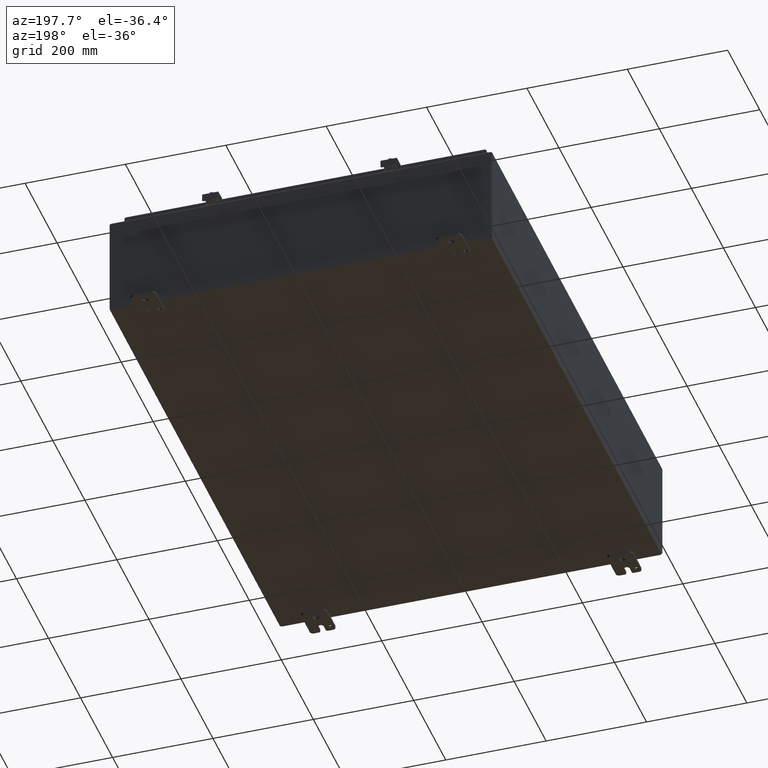
[diagram: clean part render]
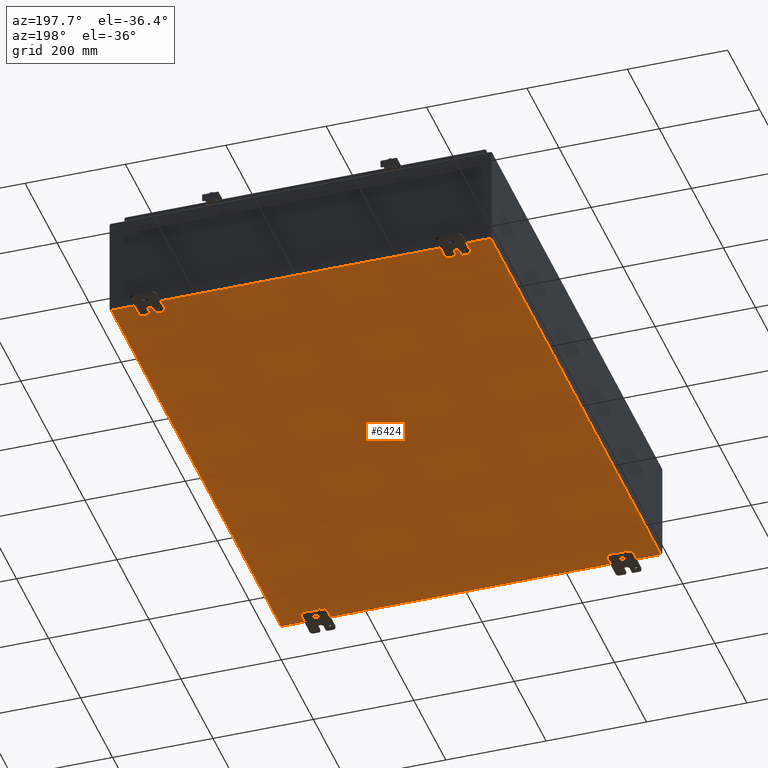
[diagram: same view with one face highlighted and labeled with its STEP entity id]
A machine part, auxiliary view. The second image highlights one B-rep face of the part: STEP entity #6424.
In plain terms, the highlighted planar face has unit normal (0, 0, 1).
Its self-contained STEP definition (entity closure, byte-faithful):
#128 = AXIS2_PLACEMENT_3D ( 'NONE', #42103, #40457, #42301 ) ;
#211 = AXIS2_PLACEMENT_3D ( 'NONE', #44488, #15847, #49394 ) ;
#239 = CARTESIAN_POINT ( 'NONE',  ( -11.51562529999998000, -19.68999899186647800, 0.0000000000000000000 ) ) ;
#617 = LINE ( 'NONE', #14365, #59246 ) ;
#690 = CIRCLE ( 'NONE', #8524, 0.07000000000000007600 ) ;
#926 = EDGE_CURVE ( 'NONE', #27794, #26056, #39203, .T. ) ;
#1309 = AXIS2_PLACEMENT_3D ( 'NONE', #32910, #4462, #37727 ) ;
#1923 = CARTESIAN_POINT ( 'NONE',  ( 14.89475000000000200, 20.88276683932436100, 0.0000000000000000000 ) ) ;
#1992 = DIRECTION ( 'NONE',  ( 1.000000000000000000, 0.0000000000000000000, 0.0000000000000000000 ) ) ;
#2391 = EDGE_CURVE ( 'NONE', #38119, #17900, #12758, .T. ) ;
#2554 = AXIS2_PLACEMENT_3D ( 'NONE', #12032, #45428, #16793 ) ;
#2591 = ORIENTED_EDGE ( 'NONE', *, *, #2391, .T. ) ;
#2736 = EDGE_CURVE ( 'NONE', #26205, #33843, #15434, .T. ) ;
#3113 = DIRECTION ( 'NONE',  ( 0.0000000000000000000, 0.0000000000000000000, 1.000000000000000000 ) ) ;
#3213 = ORIENTED_EDGE ( 'NONE', *, *, #3393, .T. ) ;
#3393 = EDGE_CURVE ( 'NONE', #32088, #27602, #30990, .T. ) ;
#3531 = LINE ( 'NONE', #59216, #25735 ) ;
#4462 = DIRECTION ( 'NONE',  ( 0.0000000000000000000, 0.0000000000000000000, 1.000000000000000000 ) ) ;
#4562 = DIRECTION ( 'NONE',  ( 0.0000000000000000000, 0.0000000000000000000, 1.000000000000000000 ) ) ;
#4574 = CARTESIAN_POINT ( 'NONE',  ( 11.51562529999999500, -19.68999899186647400, 0.0000000000000000000 ) ) ;
#4653 = VERTEX_POINT ( 'NONE', #58802 ) ;
#4666 = ORIENTED_EDGE ( 'NONE', *, *, #43387, .T. ) ;
#4711 = DIRECTION ( 'NONE',  ( 1.000000000000000000, 0.0000000000000000000, 0.0000000000000000000 ) ) ;
#4874 = CIRCLE ( 'NONE', #9232, 0.06000000000000099700 ) ;
#4909 = ORIENTED_EDGE ( 'NONE', *, *, #42933, .T. ) ;
#5029 = CIRCLE ( 'NONE', #34673, 0.06000000000000099700 ) ;
#5451 = CARTESIAN_POINT ( 'NONE',  ( -12.54437529999997900, 19.68999899186647800, 0.0000000000000000000 ) ) ;
#5521 = FACE_BOUND ( 'NONE', #51362, .T. ) ;
#5673 = CIRCLE ( 'NONE', #34553, 0.06000000000000099700 ) ;
#5931 = EDGE_LOOP ( 'NONE', ( #44299, #50729 ) ) ;
#6004 = EDGE_CURVE ( 'NONE', #55685, #9039, #617, .T. ) ;
#6424 = ADVANCED_FACE ( 'NONE', ( #8483, #35253, #32262, #19579, #45040, #7012, #56339, #43512, #30762, #18105, #5521, #54882, #41983 ), #17712, .F. ) ;
#6732 = ORIENTED_EDGE ( 'NONE', *, *, #26517, .T. ) ;
#7012 = FACE_BOUND ( 'NONE', #14826, .T. ) ;
#7304 = CARTESIAN_POINT ( 'NONE',  ( -12.42437529999997800, 19.68999899186647800, 0.0000000000000000000 ) ) ;
#7564 = DIRECTION ( 'NONE',  ( 0.0000000000000000000, 0.0000000000000000000, 1.000000000000000000 ) ) ;
#7850 = EDGE_CURVE ( 'NONE', #8580, #28354, #58143, .T. ) ;
#7889 = CARTESIAN_POINT ( 'NONE',  ( 11.51562529999999500, 19.68999899186647400, 0.0000000000000000000 ) ) ;
#7954 = DIRECTION ( 'NONE',  ( 1.000000000000000000, 0.0000000000000000000, 0.0000000000000000000 ) ) ;
#7970 = CARTESIAN_POINT ( 'NONE',  ( 12.42437529999999100, 19.68999899186647400, 0.0000000000000000000 ) ) ;
#7978 = ORIENTED_EDGE ( 'NONE', *, *, #15693, .T. ) ;
#8022 = DIRECTION ( 'NONE',  ( 0.0000000000000000000, 0.0000000000000000000, 1.000000000000000000 ) ) ;
#8032 = CARTESIAN_POINT ( 'NONE',  ( 12.48437529999999100, 19.68999899186647400, 0.0000000000000000000 ) ) ;
#8386 = DIRECTION ( 'NONE',  ( 1.000000000000000000, 0.0000000000000000000, 0.0000000000000000000 ) ) ;
#8462 = DIRECTION ( 'NONE',  ( 0.0000000000000000000, 0.0000000000000000000, 1.000000000000000000 ) ) ;
#8483 = FACE_OUTER_BOUND ( 'NONE', #44674, .T. ) ;
#8524 = AXIS2_PLACEMENT_3D ( 'NONE', #9797, #43120, #14544 ) ;
#8531 = CARTESIAN_POINT ( 'NONE',  ( -14.93789192111541000, -20.93789192111542600, 0.0000000000000000000 ) ) ;
#8580 = VERTEX_POINT ( 'NONE', #7304 ) ;
#9039 = VERTEX_POINT ( 'NONE', #17707 ) ;
#9159 = VERTEX_POINT ( 'NONE', #24103 ) ;
#9232 = AXIS2_PLACEMENT_3D ( 'NONE', #33008, #4562, #37821 ) ;
#9241 = AXIS2_PLACEMENT_3D ( 'NONE', #22546, #56148, #27352 ) ;
#9273 = CARTESIAN_POINT ( 'NONE',  ( 11.78125029999726300, 20.37549899187228100, 0.0000000000000000000 ) ) ;
#9302 = ORIENTED_EDGE ( 'NONE', *, *, #48660, .T. ) ;
#9312 = DIRECTION ( 'NONE',  ( 1.000000000000000000, 0.0000000000000000000, 0.0000000000000000000 ) ) ;
#9447 = CARTESIAN_POINT ( 'NONE',  ( -12.54437529999998300, -19.68999899186647800, 0.0000000000000000000 ) ) ;
#9640 = ORIENTED_EDGE ( 'NONE', *, *, #13805, .T. ) ;
#9715 = AXIS2_PLACEMENT_3D ( 'NONE', #7889, #41149, #12635 ) ;
#9797 = CARTESIAN_POINT ( 'NONE',  ( -14.93789192111543500, 20.93789192111543700, 0.0000000000000000000 ) ) ;
#10377 = ORIENTED_EDGE ( 'NONE', *, *, #41538, .T. ) ;
#10389 = ORIENTED_EDGE ( 'NONE', *, *, #34206, .T. ) ;
#10595 = CIRCLE ( 'NONE', #2554, 0.06000000000000099700 ) ;
#10665 = ORIENTED_EDGE ( 'NONE', *, *, #44033, .T. ) ;
#11360 = AXIS2_PLACEMENT_3D ( 'NONE', #239, #33162, #4711 ) ;
#12032 = CARTESIAN_POINT ( 'NONE',  ( 12.48437529999999100, 19.68999899186647400, 0.0000000000000000000 ) ) ;
#12186 = VERTEX_POINT ( 'NONE', #42942 ) ;
#12635 = DIRECTION ( 'NONE',  ( 1.000000000000000000, 0.0000000000000000000, 0.0000000000000000000 ) ) ;
#12758 = CIRCLE ( 'NONE', #52884, 0.06000000000000099700 ) ;
#12872 = CIRCLE ( 'NONE', #37017, 0.07000000000000007600 ) ;
#13451 = CARTESIAN_POINT ( 'NONE',  ( 14.88276683932436000, -20.89475000000000200, 0.0000000000000000000 ) ) ;
#13665 = CARTESIAN_POINT ( 'NONE',  ( 11.84125029999726300, 20.37549899187228100, 0.0000000000000000000 ) ) ;
#13805 = EDGE_CURVE ( 'NONE', #50922, #33155, #17586, .T. ) ;
#14303 = DIRECTION ( 'NONE',  ( 0.0000000000000000000, 1.000000000000000000, 0.0000000000000000000 ) ) ;
#14365 = CARTESIAN_POINT ( 'NONE',  ( -14.89474999999999800, -20.88276683932436500, 0.0000000000000000000 ) ) ;
#14522 = EDGE_CURVE ( 'NONE', #58128, #16024, #5673, .T. ) ;
#14544 = DIRECTION ( 'NONE',  ( 1.000000000000000000, 0.0000000000000000000, 0.0000000000000000000 ) ) ;
#14572 = ORIENTED_EDGE ( 'NONE', *, *, #45452, .T. ) ;
#14620 = CARTESIAN_POINT ( 'NONE',  ( -11.90125029999725100, -20.37549899187228400, 0.0000000000000000000 ) ) ;
#14826 = EDGE_LOOP ( 'NONE', ( #21621, #52913 ) ) ;
#14958 = AXIS2_PLACEMENT_3D ( 'NONE', #8032, #8022, #7954 ) ;
#15401 = EDGE_LOOP ( 'NONE', ( #26481, #9640 ) ) ;
#15434 = CIRCLE ( 'NONE', #53693, 0.06000000000000099700 ) ;
#15693 = EDGE_CURVE ( 'NONE', #27602, #32088, #47269, .T. ) ;
#15813 = CARTESIAN_POINT ( 'NONE',  ( -12.48437529999997900, 19.68999899186647800, 0.0000000000000000000 ) ) ;
#15847 = DIRECTION ( 'NONE',  ( 0.0000000000000000000, 0.0000000000000000000, 1.000000000000000000 ) ) ;
#15969 = VECTOR ( 'NONE', #27772, 39.37007874015748100 ) ;
#16024 = VERTEX_POINT ( 'NONE', #50974 ) ;
#16151 = EDGE_CURVE ( 'NONE', #25657, #51084, #18642, .T. ) ;
#16527 = EDGE_CURVE ( 'NONE', #26056, #27794, #25976, .T. ) ;
#16793 = DIRECTION ( 'NONE',  ( 1.000000000000000000, 0.0000000000000000000, 0.0000000000000000000 ) ) ;
#17170 = CIRCLE ( 'NONE', #48253, 0.06000000000000099700 ) ;
#17288 = ORIENTED_EDGE ( 'NONE', *, *, #6004, .T. ) ;
#17586 = CIRCLE ( 'NONE', #20104, 0.06000000000000099700 ) ;
#17629 = CIRCLE ( 'NONE', #45583, 0.06000000000000099700 ) ;
#17640 = ORIENTED_EDGE ( 'NONE', *, *, #51364, .T. ) ;
#17707 = CARTESIAN_POINT ( 'NONE',  ( -14.89475000000001300, 20.88276683932438600, -2.475737244258238600E-016 ) ) ;
#17712 = PLANE ( 'NONE',  #128 ) ;
#17900 = VERTEX_POINT ( 'NONE', #9273 ) ;
#17963 = EDGE_CURVE ( 'NONE', #19900, #55685, #55771, .T. ) ;
#18105 = FACE_BOUND ( 'NONE', #47729, .T. ) ;
#18429 = DIRECTION ( 'NONE',  ( 1.000000000000000000, 0.0000000000000000000, 0.0000000000000000000 ) ) ;
#18530 = EDGE_CURVE ( 'NONE', #57036, #36661, #3531, .T. ) ;
#18642 = CIRCLE ( 'NONE', #38327, 0.06000000000000099700 ) ;
#18691 = DIRECTION ( 'NONE',  ( 0.0000000000000000000, 0.0000000000000000000, 1.000000000000000000 ) ) ;
#19200 = CIRCLE ( 'NONE', #48551, 0.06000000000000099700 ) ;
#19301 = CARTESIAN_POINT ( 'NONE',  ( -12.42437529999998000, -19.68999899186647800, 0.0000000000000000000 ) ) ;
#19579 = FACE_BOUND ( 'NONE', #42394, .T. ) ;
#19608 = CIRCLE ( 'NONE', #50681, 0.06000000000000099700 ) ;
#19900 = VERTEX_POINT ( 'NONE', #55339 ) ;
#19925 = CARTESIAN_POINT ( 'NONE',  ( -11.51562529999998000, -19.68999899186647800, 0.0000000000000000000 ) ) ;
#20104 = AXIS2_PLACEMENT_3D ( 'NONE', #56181, #56266, #56392 ) ;
#20587 = DIRECTION ( 'NONE',  ( 1.000000000000000000, 0.0000000000000000000, 0.0000000000000000000 ) ) ;
#20855 = VERTEX_POINT ( 'NONE', #35913 ) ;
#20908 = ORIENTED_EDGE ( 'NONE', *, *, #7850, .T. ) ;
#21062 = ORIENTED_EDGE ( 'NONE', *, *, #56970, .T. ) ;
#21457 = CARTESIAN_POINT ( 'NONE',  ( -11.57562529999998300, 19.68999899186647800, 0.0000000000000000000 ) ) ;
#21621 = ORIENTED_EDGE ( 'NONE', *, *, #16527, .T. ) ;
#22376 = CIRCLE ( 'NONE', #40705, 0.06000000000000099700 ) ;
#22546 = CARTESIAN_POINT ( 'NONE',  ( 11.51562529999999500, -19.68999899186647400, 0.0000000000000000000 ) ) ;
#22687 = CARTESIAN_POINT ( 'NONE',  ( 11.84125029999726100, -20.37549899187228100, 0.0000000000000000000 ) ) ;
#24103 = CARTESIAN_POINT ( 'NONE',  ( -11.78125029999724800, 20.37549899187228400, 0.0000000000000000000 ) ) ;
#24236 = AXIS2_PLACEMENT_3D ( 'NONE', #41564, #41552, #41413 ) ;
#24724 = CARTESIAN_POINT ( 'NONE',  ( -14.89474999999999500, -20.88276683932436100, -2.475737244258238600E-016 ) ) ;
#24730 = DIRECTION ( 'NONE',  ( 1.000000000000000000, 0.0000000000000000000, 0.0000000000000000000 ) ) ;
#24923 = CARTESIAN_POINT ( 'NONE',  ( -11.51562529999998000, 19.68999899186647800, 0.0000000000000000000 ) ) ;
#25428 = DIRECTION ( 'NONE',  ( 0.0000000000000000000, 0.0000000000000000000, 1.000000000000000000 ) ) ;
#25576 = ORIENTED_EDGE ( 'NONE', *, *, #16151, .T. ) ;
#25657 = VERTEX_POINT ( 'NONE', #56964 ) ;
#25735 = VECTOR ( 'NONE', #59405, 39.37007874015748100 ) ;
#25831 = CARTESIAN_POINT ( 'NONE',  ( 11.90125029999726200, -20.37549899187228100, 0.0000000000000000000 ) ) ;
#25976 = CIRCLE ( 'NONE', #35931, 0.06000000000000099700 ) ;
#25985 = VERTEX_POINT ( 'NONE', #33126 ) ;
#26056 = VERTEX_POINT ( 'NONE', #29958 ) ;
#26192 = DIRECTION ( 'NONE',  ( 0.0000000000000000000, 0.0000000000000000000, 1.000000000000000000 ) ) ;
#26205 = VERTEX_POINT ( 'NONE', #21457 ) ;
#26363 = ORIENTED_EDGE ( 'NONE', *, *, #49867, .T. ) ;
#26408 = AXIS2_PLACEMENT_3D ( 'NONE', #19925, #53596, #24730 ) ;
#26481 = ORIENTED_EDGE ( 'NONE', *, *, #48659, .T. ) ;
#26517 = EDGE_CURVE ( 'NONE', #38646, #40283, #56686, .T. ) ;
#26880 = DIRECTION ( 'NONE',  ( 1.000000000000000000, 0.0000000000000000000, 0.0000000000000000000 ) ) ;
#27352 = DIRECTION ( 'NONE',  ( 1.000000000000000000, 0.0000000000000000000, 0.0000000000000000000 ) ) ;
#27472 = DIRECTION ( 'NONE',  ( 1.000000000000000000, 0.0000000000000000000, 0.0000000000000000000 ) ) ;
#27602 = VERTEX_POINT ( 'NONE', #55209 ) ;
#27772 = DIRECTION ( 'NONE',  ( -1.000000000000000000, 0.0000000000000000000, 0.0000000000000000000 ) ) ;
#27794 = VERTEX_POINT ( 'NONE', #14620 ) ;
#28354 = VERTEX_POINT ( 'NONE', #5451 ) ;
#28826 = CARTESIAN_POINT ( 'NONE',  ( -11.90125029999725100, 20.37549899187228400, 0.0000000000000000000 ) ) ;
#29958 = CARTESIAN_POINT ( 'NONE',  ( -11.78125029999724800, -20.37549899187228400, 0.0000000000000000000 ) ) ;
#30566 = AXIS2_PLACEMENT_3D ( 'NONE', #38808, #38797, #38575 ) ;
#30740 = CARTESIAN_POINT ( 'NONE',  ( 11.84125029999726300, 20.37549899187228100, 0.0000000000000000000 ) ) ;
#30762 = FACE_BOUND ( 'NONE', #47141, .T. ) ;
#30990 = CIRCLE ( 'NONE', #24236, 0.06000000000000099700 ) ;
#31600 = CIRCLE ( 'NONE', #11360, 0.06000000000000099700 ) ;
#31804 = CIRCLE ( 'NONE', #1309, 0.06000000000000099700 ) ;
#32088 = VERTEX_POINT ( 'NONE', #58429 ) ;
#32262 = FACE_BOUND ( 'NONE', #5931, .T. ) ;
#32910 = CARTESIAN_POINT ( 'NONE',  ( -11.84125029999724900, 20.37549899187228400, 0.0000000000000000000 ) ) ;
#33008 = CARTESIAN_POINT ( 'NONE',  ( -12.48437529999998000, -19.68999899186647800, 0.0000000000000000000 ) ) ;
#33126 = CARTESIAN_POINT ( 'NONE',  ( 14.88276683932436100, -20.89475000000000200, -2.475737244258238600E-016 ) ) ;
#33155 = VERTEX_POINT ( 'NONE', #19301 ) ;
#33162 = DIRECTION ( 'NONE',  ( 0.0000000000000000000, 0.0000000000000000000, 1.000000000000000000 ) ) ;
#33230 = EDGE_LOOP ( 'NONE', ( #7978, #3213 ) ) ;
#33433 = ORIENTED_EDGE ( 'NONE', *, *, #38330, .T. ) ;
#33681 = ORIENTED_EDGE ( 'NONE', *, *, #2736, .T. ) ;
#33843 = VERTEX_POINT ( 'NONE', #55301 ) ;
#34206 = EDGE_CURVE ( 'NONE', #42232, #25985, #12872, .T. ) ;
#34553 = AXIS2_PLACEMENT_3D ( 'NONE', #45212, #45131, #45002 ) ;
#34673 = AXIS2_PLACEMENT_3D ( 'NONE', #55010, #26192, #59672 ) ;
#35253 = FACE_BOUND ( 'NONE', #33230, .T. ) ;
#35849 = EDGE_CURVE ( 'NONE', #20855, #51458, #17629, .T. ) ;
#35913 = CARTESIAN_POINT ( 'NONE',  ( 11.45562529999999200, -19.68999899186647400, 0.0000000000000000000 ) ) ;
#35931 = AXIS2_PLACEMENT_3D ( 'NONE', #53803, #53736, #53729 ) ;
#36002 = CARTESIAN_POINT ( 'NONE',  ( 12.48437529999999100, -19.68999899186647400, 0.0000000000000000000 ) ) ;
#36022 = CARTESIAN_POINT ( 'NONE',  ( 14.93789192111541900, -20.93789192111542300, 0.0000000000000000000 ) ) ;
#36125 = ORIENTED_EDGE ( 'NONE', *, *, #18530, .T. ) ;
#36149 = DIRECTION ( 'NONE',  ( 0.0000000000000000000, 0.0000000000000000000, 1.000000000000000000 ) ) ;
#36338 = DIRECTION ( 'NONE',  ( 1.000000000000000000, 0.0000000000000000000, 0.0000000000000000000 ) ) ;
#36661 = VERTEX_POINT ( 'NONE', #48140 ) ;
#36942 = VERTEX_POINT ( 'NONE', #50021 ) ;
#37017 = AXIS2_PLACEMENT_3D ( 'NONE', #36022, #7564, #40827 ) ;
#37727 = DIRECTION ( 'NONE',  ( 1.000000000000000000, 0.0000000000000000000, 0.0000000000000000000 ) ) ;
#37821 = DIRECTION ( 'NONE',  ( 1.000000000000000000, 0.0000000000000000000, 0.0000000000000000000 ) ) ;
#37837 = DIRECTION ( 'NONE',  ( 0.0000000000000000000, 0.0000000000000000000, 1.000000000000000000 ) ) ;
#38119 = VERTEX_POINT ( 'NONE', #59186 ) ;
#38327 = AXIS2_PLACEMENT_3D ( 'NONE', #44508, #38826, #45843 ) ;
#38330 = EDGE_CURVE ( 'NONE', #16024, #58128, #19608, .T. ) ;
#38501 = EDGE_LOOP ( 'NONE', ( #6732, #10377 ) ) ;
#38575 = DIRECTION ( 'NONE',  ( 1.000000000000000000, 0.0000000000000000000, 0.0000000000000000000 ) ) ;
#38646 = VERTEX_POINT ( 'NONE', #47172 ) ;
#38750 = VERTEX_POINT ( 'NONE', #28826 ) ;
#38797 = DIRECTION ( 'NONE',  ( 0.0000000000000000000, 0.0000000000000000000, 1.000000000000000000 ) ) ;
#38808 = CARTESIAN_POINT ( 'NONE',  ( -12.48437529999997900, 19.68999899186647800, 0.0000000000000000000 ) ) ;
#38826 = DIRECTION ( 'NONE',  ( 0.0000000000000000000, 0.0000000000000000000, 1.000000000000000000 ) ) ;
#39203 = CIRCLE ( 'NONE', #58736, 0.06000000000000099700 ) ;
#39790 = CARTESIAN_POINT ( 'NONE',  ( -14.88276683932437500, 20.89475000000000900, 2.475737244258238600E-016 ) ) ;
#40283 = VERTEX_POINT ( 'NONE', #7970 ) ;
#40287 = DIRECTION ( 'NONE',  ( 1.000000000000000000, 0.0000000000000000000, 0.0000000000000000000 ) ) ;
#40362 = DIRECTION ( 'NONE',  ( 0.0000000000000000000, 0.0000000000000000000, 1.000000000000000000 ) ) ;
#40428 = CARTESIAN_POINT ( 'NONE',  ( -11.84125029999724900, -20.37549899187228400, 0.0000000000000000000 ) ) ;
#40457 = DIRECTION ( 'NONE',  ( 0.0000000000000000000, 0.0000000000000000000, 1.000000000000000000 ) ) ;
#40470 = CARTESIAN_POINT ( 'NONE',  ( 11.45562529999999200, 19.68999899186647400, 0.0000000000000000000 ) ) ;
#40705 = AXIS2_PLACEMENT_3D ( 'NONE', #13665, #47118, #18429 ) ;
#40727 = ORIENTED_EDGE ( 'NONE', *, *, #55258, .T. ) ;
#40827 = DIRECTION ( 'NONE',  ( 1.000000000000000000, 0.0000000000000000000, 0.0000000000000000000 ) ) ;
#40898 = EDGE_CURVE ( 'NONE', #9159, #38750, #5029, .T. ) ;
#41149 = DIRECTION ( 'NONE',  ( 0.0000000000000000000, 0.0000000000000000000, 1.000000000000000000 ) ) ;
#41326 = LINE ( 'NONE', #13451, #15969 ) ;
#41413 = DIRECTION ( 'NONE',  ( 1.000000000000000000, 0.0000000000000000000, 0.0000000000000000000 ) ) ;
#41538 = EDGE_CURVE ( 'NONE', #40283, #38646, #10595, .T. ) ;
#41552 = DIRECTION ( 'NONE',  ( 0.0000000000000000000, 0.0000000000000000000, 1.000000000000000000 ) ) ;
#41564 = CARTESIAN_POINT ( 'NONE',  ( 12.48437529999999100, -19.68999899186647400, 0.0000000000000000000 ) ) ;
#41705 = EDGE_CURVE ( 'NONE', #17900, #38119, #22376, .T. ) ;
#41983 = FACE_BOUND ( 'NONE', #38501, .T. ) ;
#42103 = CARTESIAN_POINT ( 'NONE',  ( -1.398706000000000100E-015, 4.196119000000001000E-015, 0.0000000000000000000 ) ) ;
#42232 = VERTEX_POINT ( 'NONE', #51529 ) ;
#42301 = DIRECTION ( 'NONE',  ( 1.000000000000000000, 0.0000000000000000000, 0.0000000000000000000 ) ) ;
#42316 = ORIENTED_EDGE ( 'NONE', *, *, #17963, .T. ) ;
#42394 = EDGE_LOOP ( 'NONE', ( #47226, #33433 ) ) ;
#42890 = VECTOR ( 'NONE', #45075, 39.37007874015748100 ) ;
#42933 = EDGE_CURVE ( 'NONE', #33843, #26205, #19200, .T. ) ;
#42942 = CARTESIAN_POINT ( 'NONE',  ( -11.57562529999998300, -19.68999899186647800, 0.0000000000000000000 ) ) ;
#43120 = DIRECTION ( 'NONE',  ( 0.0000000000000000000, 0.0000000000000000000, 1.000000000000000000 ) ) ;
#43387 = EDGE_CURVE ( 'NONE', #51084, #25657, #49129, .T. ) ;
#43512 = FACE_BOUND ( 'NONE', #46203, .T. ) ;
#44033 = EDGE_CURVE ( 'NONE', #12186, #4653, #31600, .T. ) ;
#44299 = ORIENTED_EDGE ( 'NONE', *, *, #54308, .T. ) ;
#44488 = CARTESIAN_POINT ( 'NONE',  ( 14.93789192111541400, 20.93789192111542600, 0.0000000000000000000 ) ) ;
#44508 = CARTESIAN_POINT ( 'NONE',  ( 11.51562529999999500, 19.68999899186647400, 0.0000000000000000000 ) ) ;
#44674 = EDGE_LOOP ( 'NONE', ( #36125, #14572, #40727, #10389, #9302, #42316, #17288, #46115 ) ) ;
#45002 = DIRECTION ( 'NONE',  ( 1.000000000000000000, 0.0000000000000000000, 0.0000000000000000000 ) ) ;
#45040 = FACE_BOUND ( 'NONE', #45164, .T. ) ;
#45075 = DIRECTION ( 'NONE',  ( 0.0000000000000000000, -1.000000000000000000, 0.0000000000000000000 ) ) ;
#45131 = DIRECTION ( 'NONE',  ( 0.0000000000000000000, 0.0000000000000000000, 1.000000000000000000 ) ) ;
#45164 = EDGE_LOOP ( 'NONE', ( #26363, #10665 ) ) ;
#45212 = CARTESIAN_POINT ( 'NONE',  ( 11.84125029999726100, -20.37549899187228100, 0.0000000000000000000 ) ) ;
#45428 = DIRECTION ( 'NONE',  ( 0.0000000000000000000, 0.0000000000000000000, 1.000000000000000000 ) ) ;
#45452 = EDGE_CURVE ( 'NONE', #36661, #36942, #45569, .T. ) ;
#45569 = CIRCLE ( 'NONE', #211, 0.07000000000000007600 ) ;
#45583 = AXIS2_PLACEMENT_3D ( 'NONE', #4574, #37837, #9312 ) ;
#45843 = DIRECTION ( 'NONE',  ( 1.000000000000000000, 0.0000000000000000000, 0.0000000000000000000 ) ) ;
#46115 = ORIENTED_EDGE ( 'NONE', *, *, #55531, .T. ) ;
#46203 = EDGE_LOOP ( 'NONE', ( #49800, #17640 ) ) ;
#47118 = DIRECTION ( 'NONE',  ( 0.0000000000000000000, 0.0000000000000000000, 1.000000000000000000 ) ) ;
#47141 = EDGE_LOOP ( 'NONE', ( #20908, #21062 ) ) ;
#47172 = CARTESIAN_POINT ( 'NONE',  ( 12.54437529999999300, 19.68999899186647400, 0.0000000000000000000 ) ) ;
#47226 = ORIENTED_EDGE ( 'NONE', *, *, #14522, .T. ) ;
#47269 = CIRCLE ( 'NONE', #61106, 0.06000000000000099700 ) ;
#47402 = CARTESIAN_POINT ( 'NONE',  ( -11.51562529999998000, 19.68999899186647800, 0.0000000000000000000 ) ) ;
#47729 = EDGE_LOOP ( 'NONE', ( #4909, #33681 ) ) ;
#48140 = CARTESIAN_POINT ( 'NONE',  ( 14.88276683932436100, 20.89475000000000900, 2.475737244258238600E-016 ) ) ;
#48195 = EDGE_LOOP ( 'NONE', ( #2591, #49449 ) ) ;
#48253 = AXIS2_PLACEMENT_3D ( 'NONE', #15813, #49355, #20587 ) ;
#48551 = AXIS2_PLACEMENT_3D ( 'NONE', #47402, #18691, #52311 ) ;
#48659 = EDGE_CURVE ( 'NONE', #33155, #50922, #4874, .T. ) ;
#48660 = EDGE_CURVE ( 'NONE', #25985, #19900, #41326, .T. ) ;
#49129 = CIRCLE ( 'NONE', #9715, 0.06000000000000099700 ) ;
#49355 = DIRECTION ( 'NONE',  ( 0.0000000000000000000, 0.0000000000000000000, 1.000000000000000000 ) ) ;
#49394 = DIRECTION ( 'NONE',  ( 1.000000000000000000, 0.0000000000000000000, 0.0000000000000000000 ) ) ;
#49449 = ORIENTED_EDGE ( 'NONE', *, *, #41705, .T. ) ;
#49800 = ORIENTED_EDGE ( 'NONE', *, *, #40898, .T. ) ;
#49867 = EDGE_CURVE ( 'NONE', #4653, #12186, #55371, .T. ) ;
#50021 = CARTESIAN_POINT ( 'NONE',  ( 14.89475000000000000, 20.88276683932436100, -2.475737244258238600E-016 ) ) ;
#50681 = AXIS2_PLACEMENT_3D ( 'NONE', #22687, #56274, #27472 ) ;
#50729 = ORIENTED_EDGE ( 'NONE', *, *, #35849, .T. ) ;
#50922 = VERTEX_POINT ( 'NONE', #9447 ) ;
#50974 = CARTESIAN_POINT ( 'NONE',  ( 11.78125029999725900, -20.37549899187228100, 0.0000000000000000000 ) ) ;
#51084 = VERTEX_POINT ( 'NONE', #40470 ) ;
#51362 = EDGE_LOOP ( 'NONE', ( #25576, #4666 ) ) ;
#51364 = EDGE_CURVE ( 'NONE', #38750, #9159, #31804, .T. ) ;
#51426 = AXIS2_PLACEMENT_3D ( 'NONE', #8531, #8462, #8386 ) ;
#51458 = VERTEX_POINT ( 'NONE', #57855 ) ;
#51529 = CARTESIAN_POINT ( 'NONE',  ( 14.89475000000001300, -20.88276683932436500, 2.475737244258238600E-016 ) ) ;
#52311 = DIRECTION ( 'NONE',  ( 1.000000000000000000, 0.0000000000000000000, 0.0000000000000000000 ) ) ;
#52884 = AXIS2_PLACEMENT_3D ( 'NONE', #30740, #3113, #1992 ) ;
#52913 = ORIENTED_EDGE ( 'NONE', *, *, #926, .T. ) ;
#53596 = DIRECTION ( 'NONE',  ( 0.0000000000000000000, 0.0000000000000000000, 1.000000000000000000 ) ) ;
#53693 = AXIS2_PLACEMENT_3D ( 'NONE', #24923, #25428, #26880 ) ;
#53729 = DIRECTION ( 'NONE',  ( 1.000000000000000000, 0.0000000000000000000, 0.0000000000000000000 ) ) ;
#53736 = DIRECTION ( 'NONE',  ( 0.0000000000000000000, 0.0000000000000000000, 1.000000000000000000 ) ) ;
#53803 = CARTESIAN_POINT ( 'NONE',  ( -11.84125029999724900, -20.37549899187228400, 0.0000000000000000000 ) ) ;
#54308 = EDGE_CURVE ( 'NONE', #51458, #20855, #54529, .T. ) ;
#54529 = CIRCLE ( 'NONE', #9241, 0.06000000000000099700 ) ;
#54882 = FACE_BOUND ( 'NONE', #48195, .T. ) ;
#55010 = CARTESIAN_POINT ( 'NONE',  ( -11.84125029999724900, 20.37549899187228400, 0.0000000000000000000 ) ) ;
#55209 = CARTESIAN_POINT ( 'NONE',  ( 12.54437529999999300, -19.68999899186647400, 0.0000000000000000000 ) ) ;
#55258 = EDGE_CURVE ( 'NONE', #36942, #42232, #57233, .T. ) ;
#55301 = CARTESIAN_POINT ( 'NONE',  ( -11.45562529999998000, 19.68999899186647800, 0.0000000000000000000 ) ) ;
#55339 = CARTESIAN_POINT ( 'NONE',  ( -14.88276683932435800, -20.89475000000000200, -2.475737244258238600E-016 ) ) ;
#55371 = CIRCLE ( 'NONE', #26408, 0.06000000000000099700 ) ;
#55531 = EDGE_CURVE ( 'NONE', #9039, #57036, #690, .T. ) ;
#55685 = VERTEX_POINT ( 'NONE', #24724 ) ;
#55771 = CIRCLE ( 'NONE', #51426, 0.07000000000000007600 ) ;
#56148 = DIRECTION ( 'NONE',  ( 0.0000000000000000000, 0.0000000000000000000, 1.000000000000000000 ) ) ;
#56181 = CARTESIAN_POINT ( 'NONE',  ( -12.48437529999998000, -19.68999899186647800, 0.0000000000000000000 ) ) ;
#56266 = DIRECTION ( 'NONE',  ( 0.0000000000000000000, 0.0000000000000000000, 1.000000000000000000 ) ) ;
#56274 = DIRECTION ( 'NONE',  ( 0.0000000000000000000, 0.0000000000000000000, 1.000000000000000000 ) ) ;
#56339 = FACE_BOUND ( 'NONE', #15401, .T. ) ;
#56392 = DIRECTION ( 'NONE',  ( 1.000000000000000000, 0.0000000000000000000, 0.0000000000000000000 ) ) ;
#56686 = CIRCLE ( 'NONE', #14958, 0.06000000000000099700 ) ;
#56964 = CARTESIAN_POINT ( 'NONE',  ( 11.57562529999999500, 19.68999899186647400, 0.0000000000000000000 ) ) ;
#56970 = EDGE_CURVE ( 'NONE', #28354, #8580, #17170, .T. ) ;
#57036 = VERTEX_POINT ( 'NONE', #39790 ) ;
#57233 = LINE ( 'NONE', #1923, #42890 ) ;
#57855 = CARTESIAN_POINT ( 'NONE',  ( 11.57562529999999500, -19.68999899186647400, 0.0000000000000000000 ) ) ;
#58128 = VERTEX_POINT ( 'NONE', #25831 ) ;
#58143 = CIRCLE ( 'NONE', #30566, 0.06000000000000099700 ) ;
#58429 = CARTESIAN_POINT ( 'NONE',  ( 12.42437529999999100, -19.68999899186647400, 0.0000000000000000000 ) ) ;
#58736 = AXIS2_PLACEMENT_3D ( 'NONE', #40428, #40362, #40287 ) ;
#58802 = CARTESIAN_POINT ( 'NONE',  ( -11.45562529999998000, -19.68999899186647800, 0.0000000000000000000 ) ) ;
#59186 = CARTESIAN_POINT ( 'NONE',  ( 11.90125029999726400, 20.37549899187228100, 0.0000000000000000000 ) ) ;
#59216 = CARTESIAN_POINT ( 'NONE',  ( -14.88276683932438100, 20.89475000000000900, 0.0000000000000000000 ) ) ;
#59246 = VECTOR ( 'NONE', #14303, 39.37007874015748100 ) ;
#59405 = DIRECTION ( 'NONE',  ( 1.000000000000000000, 0.0000000000000000000, 0.0000000000000000000 ) ) ;
#59672 = DIRECTION ( 'NONE',  ( 1.000000000000000000, 0.0000000000000000000, 0.0000000000000000000 ) ) ;
#61106 = AXIS2_PLACEMENT_3D ( 'NONE', #36002, #36149, #36338 ) ;